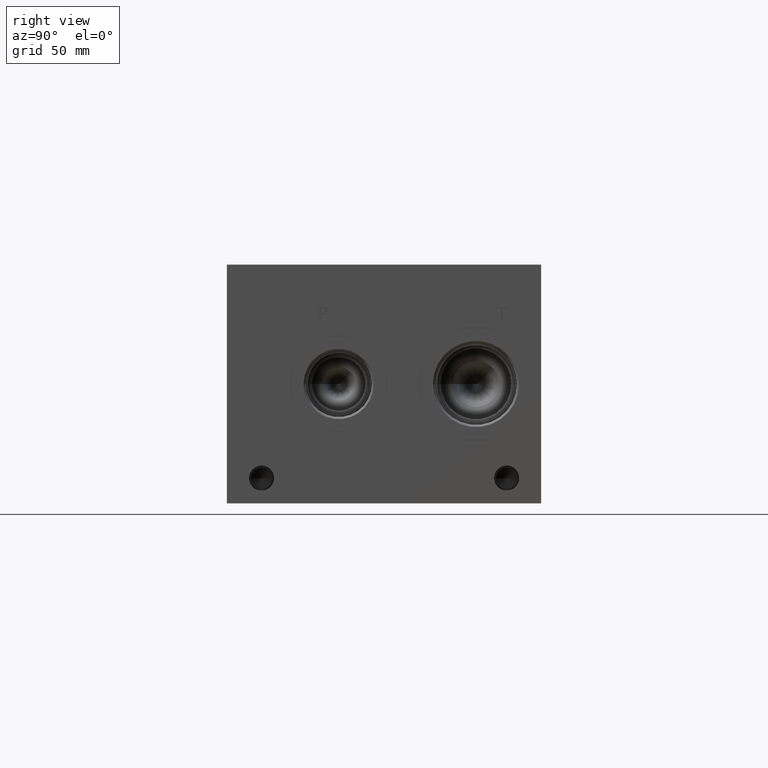
[diagram: clean part render]
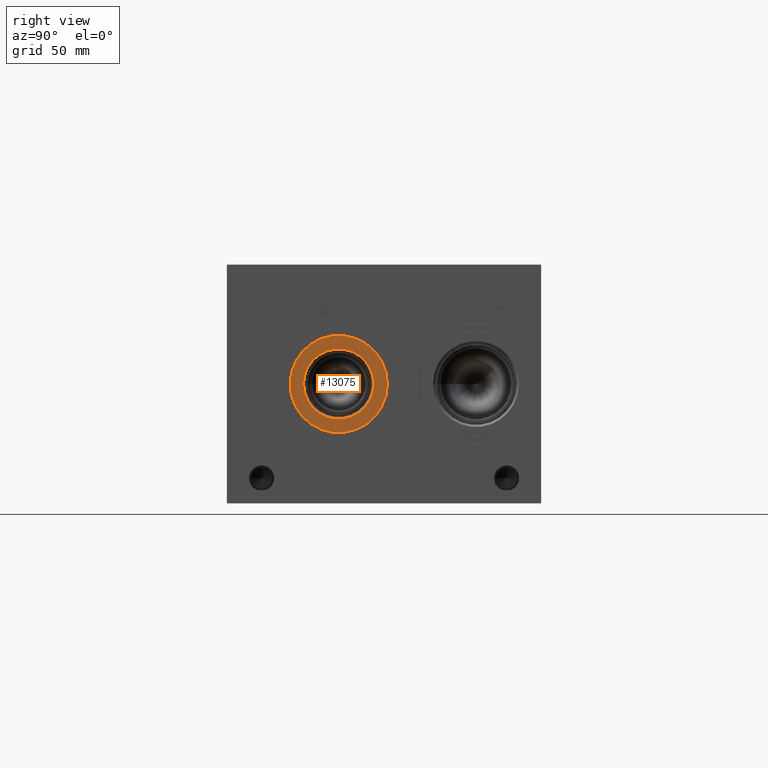
[diagram: same view with one face highlighted and labeled with its STEP entity id]
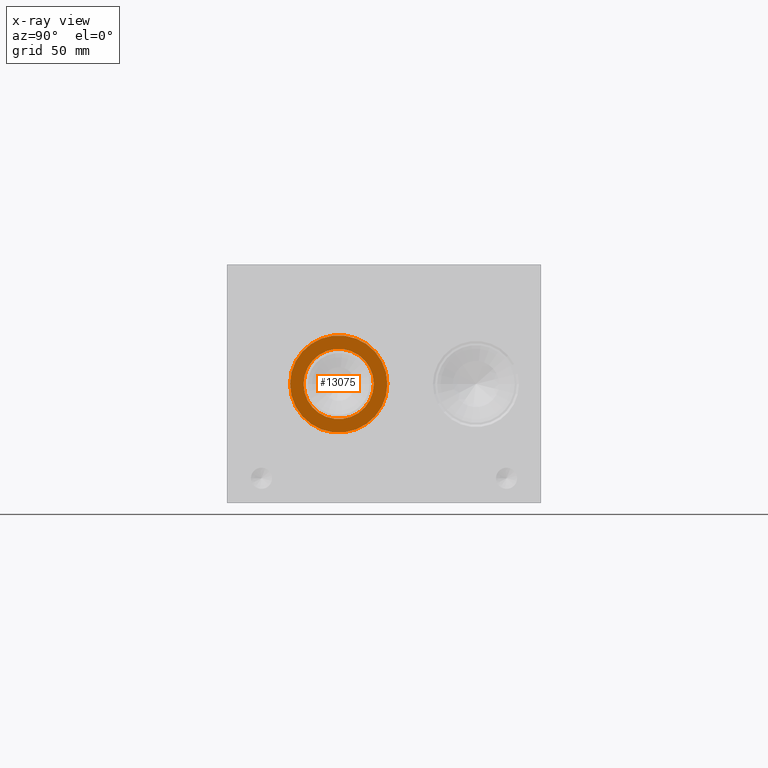
[diagram: x-ray of the same camera — body ghosted, the highlighted face saturated]
A machine part, right view. The second image highlights one B-rep face of the part: STEP entity #13075.
The next image is the same camera in x-ray: the body ghosted, the highlighted face saturated — about 0% of this face is hidden behind the body in this view.
In plain terms, the highlighted planar face has unit normal (1, 0, 0).
Its self-contained STEP definition (entity closure, byte-faithful):
#246=CIRCLE('',#13686,24.5618);
#247=CIRCLE('',#13687,24.5618);
#248=CIRCLE('',#13688,17.7546);
#622=FACE_BOUND('',#2297,.T.);
#1006=PLANE('',#13685);
#1538=FACE_OUTER_BOUND('',#2296,.T.);
#2296=EDGE_LOOP('',(#10966,#10967));
#2297=EDGE_LOOP('',(#10968));
#6113=VERTEX_POINT('',#21934);
#6114=VERTEX_POINT('',#21935);
#6115=VERTEX_POINT('',#21938);
#7823=EDGE_CURVE('',#6113,#6114,#246,.T.);
#7824=EDGE_CURVE('',#6114,#6113,#247,.T.);
#7825=EDGE_CURVE('',#6115,#6115,#248,.T.);
#10966=ORIENTED_EDGE('',*,*,#7823,.T.);
#10967=ORIENTED_EDGE('',*,*,#7824,.T.);
#10968=ORIENTED_EDGE('',*,*,#7825,.F.);
#13075=ADVANCED_FACE('',(#1538,#622),#1006,.T.);
#13685=AXIS2_PLACEMENT_3D('',#21933,#15993,#15994);
#13686=AXIS2_PLACEMENT_3D('',#21936,#15995,#15996);
#13687=AXIS2_PLACEMENT_3D('',#21937,#15997,#15998);
#13688=AXIS2_PLACEMENT_3D('',#21939,#15999,#16000);
#15993=DIRECTION('center_axis',(1.,0.,0.));
#15994=DIRECTION('ref_axis',(0.,1.,0.));
#15995=DIRECTION('center_axis',(1.,0.,0.));
#15996=DIRECTION('ref_axis',(0.,1.,0.));
#15997=DIRECTION('center_axis',(1.,0.,0.));
#15998=DIRECTION('ref_axis',(0.,1.,0.));
#15999=DIRECTION('center_axis',(1.,0.,0.));
#16000=DIRECTION('ref_axis',(0.,1.,0.));
#21933=CARTESIAN_POINT('Origin',(310.3626,56.4896,60.325));
#21934=CARTESIAN_POINT('',(310.3626,81.0514,60.325));
#21935=CARTESIAN_POINT('',(310.3626,31.9278,60.325));
#21936=CARTESIAN_POINT('Origin',(310.3626,56.4896,60.325));
#21937=CARTESIAN_POINT('Origin',(310.3626,56.4896,60.325));
#21938=CARTESIAN_POINT('',(310.3626,38.735,60.325));
#21939=CARTESIAN_POINT('Origin',(310.3626,56.4896,60.325));